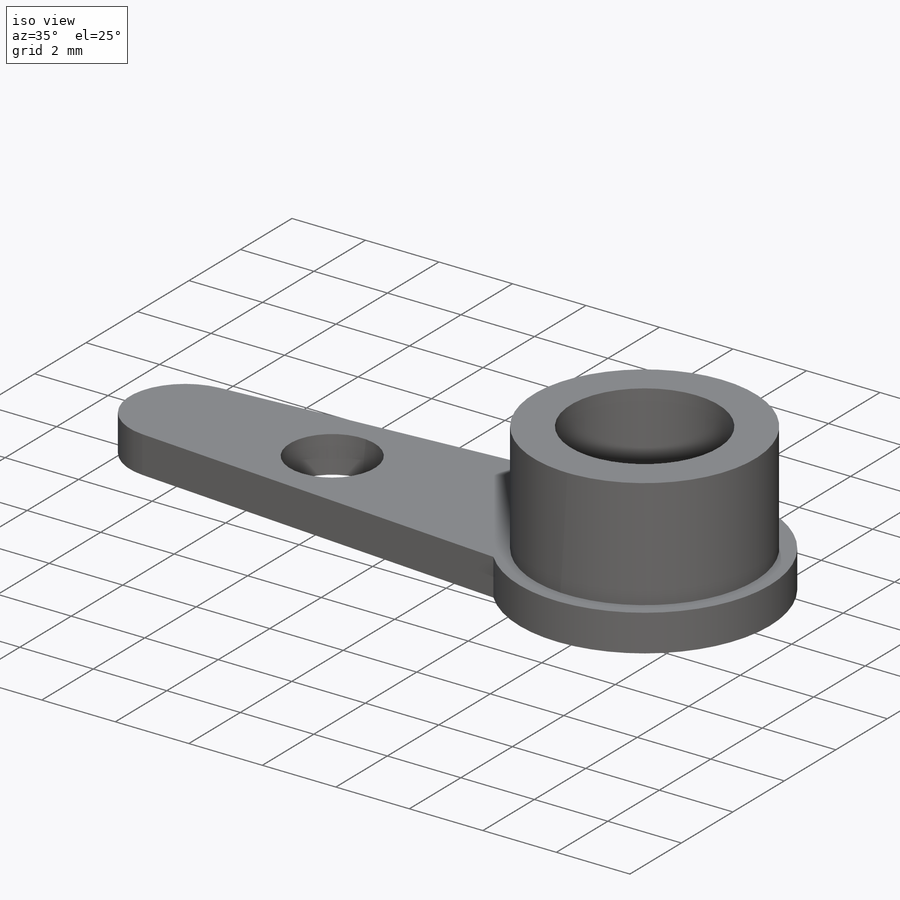
[diagram: iso view]
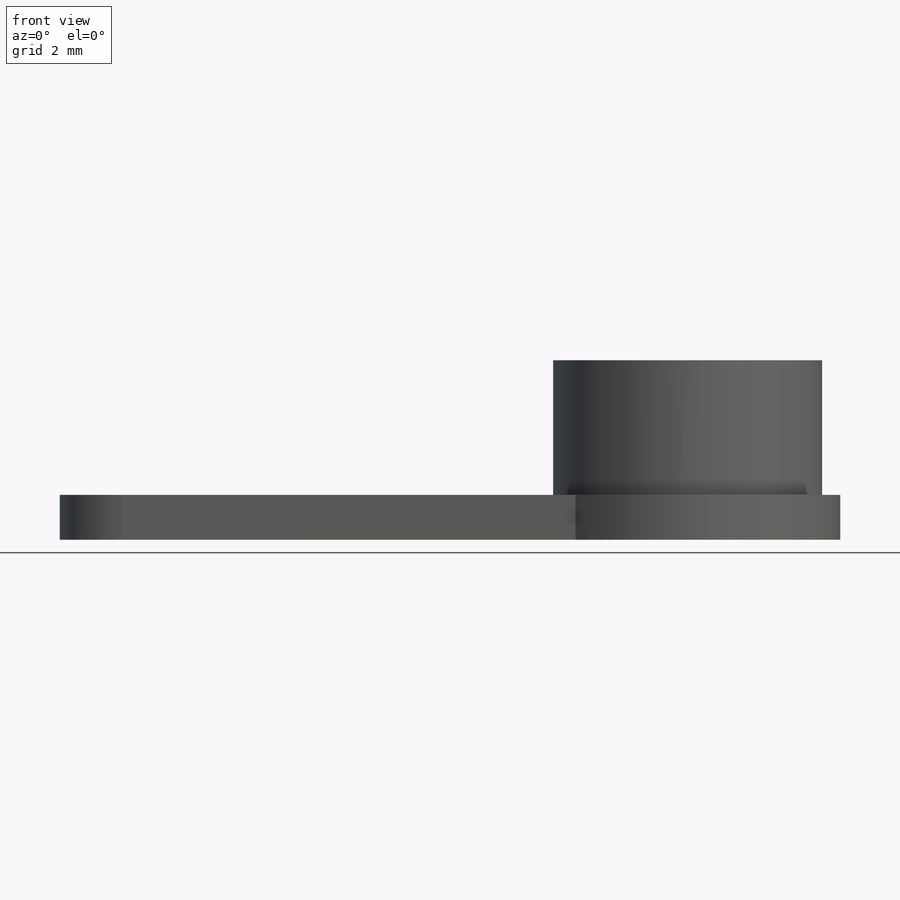
[diagram: front view]
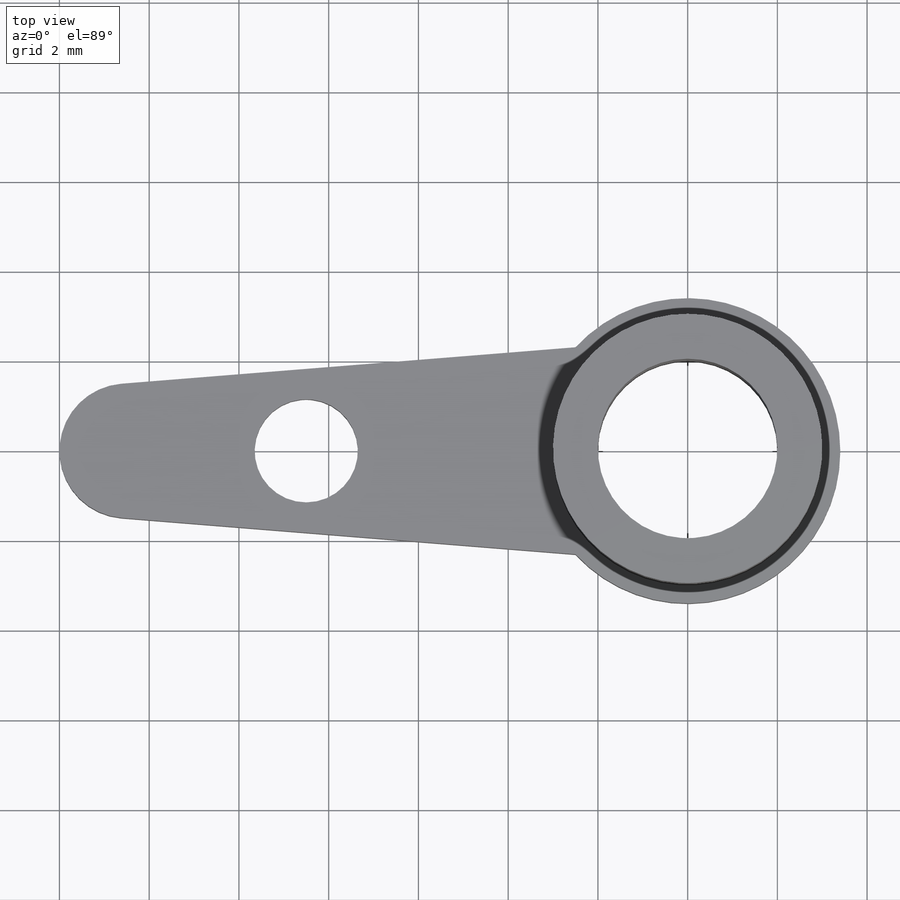
[diagram: top view]
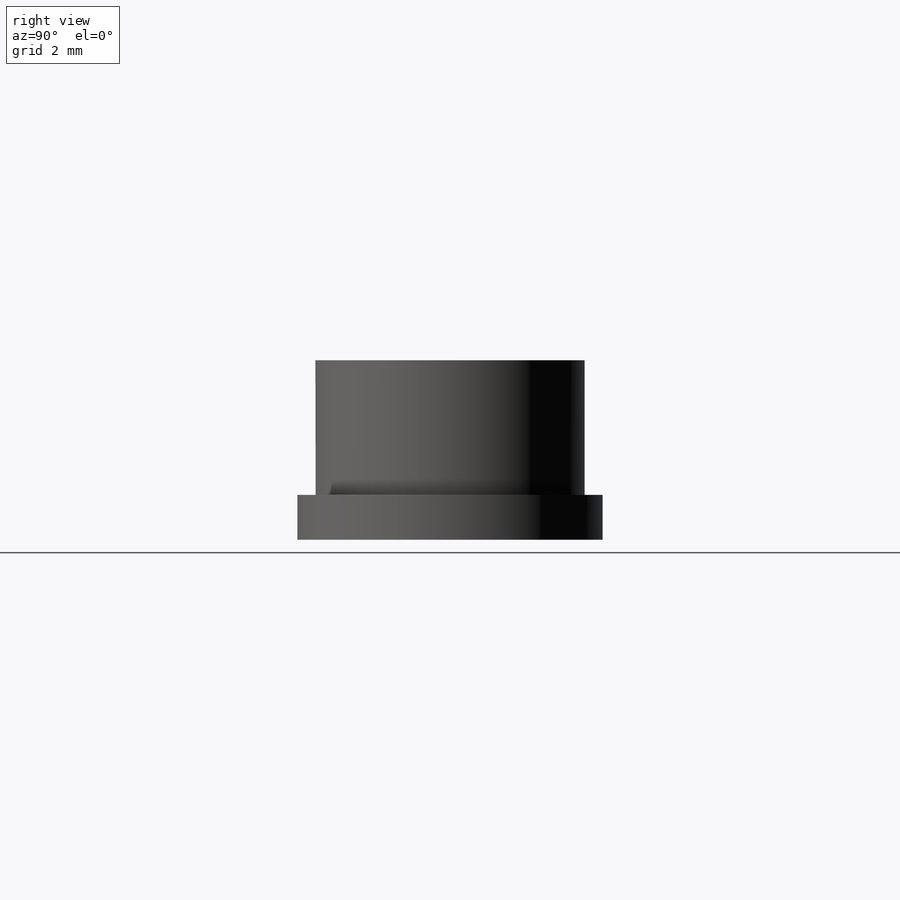
[diagram: right view]
SOLIDWORKS PART (.sldprt)
format: sldprt  version: not decoded by parser v0  size: 237,568 bytes
history: native  units: mm
features: sketch x4, plane x3, extrude x2, cut_extrude x2, material x1 (+10 scaffold rows collapsed)
feature tree (22):
  scaffold x10  (default folders/planes/origin — collapsed)
  material  "uhlíková ocel 7850"
  plane  "Přední rovina"
  plane  "Horní rovina"
  plane  "Pravá rovina"
  sketch  "Skica1"  dims[c1.D1=4.0mm c1.D2=1.5mm c1.D3=4.0mm c1.D5=~3.401463mm c1.D7=2.5mm c2.D2=~15.428969mm c2.D4=12.5mm c2.D3=2.5mm c2.D5=6.0mm c2.D6=5.0mm c2.D7=15.5mm c3.D5=15.5mm]
  extrude  "Přidat vysunutím1"  Depth=1mm
  sketch  "Skica2"  dims[D1=2.3mm D2=17.0mm]
  cut_extrude  "Odebrat vysunutím1"  Depth=2mm
  sketch  "Skica3"  dims[D1=1.5mm]
  extrude  "Přidat vysunutím2"  Depth=3mm
  sketch  "Skica4"
  cut_extrude  "Odebrat vysunutím2"  Depth=10mm
decode coverage: 7 of 8 modeling features carry decoded parameters
note: ~ marks probable driven/reference dimensions
note: suppression state not decoded; provenance and decode notes live in map.json
